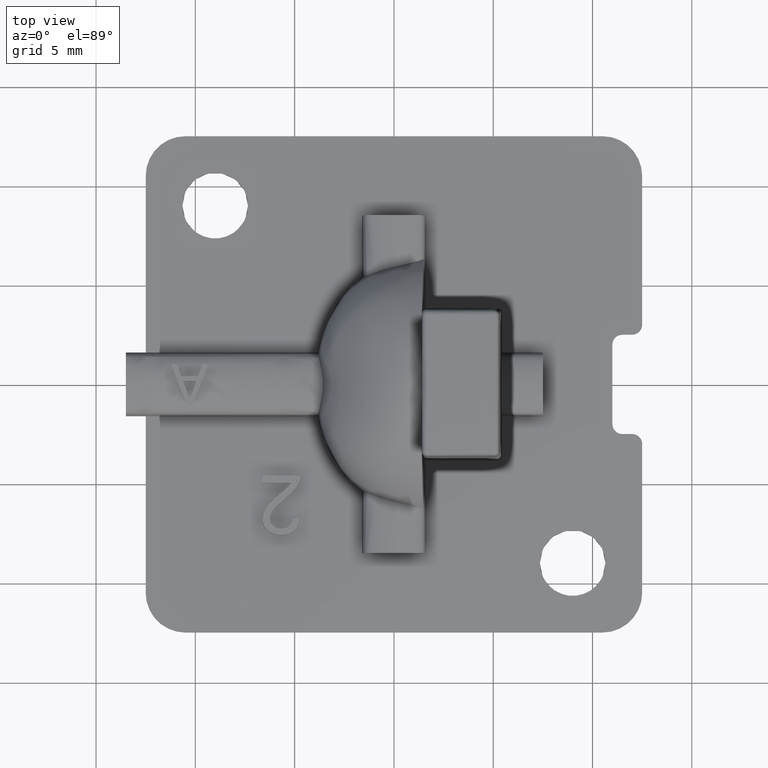
[diagram: clean part render]
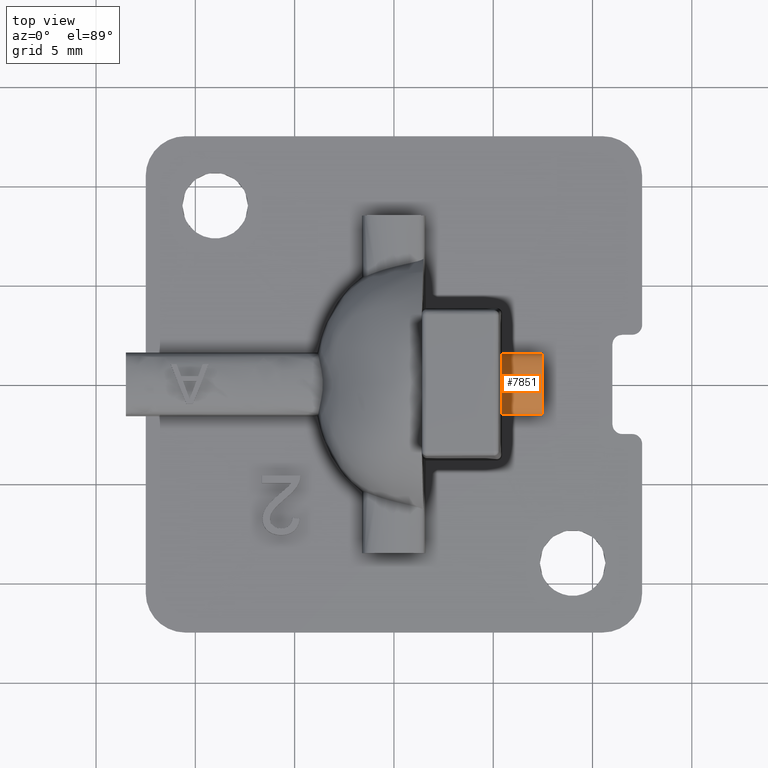
[diagram: same view with one face highlighted and labeled with its STEP entity id]
A machine part, top view. The second image highlights one B-rep face of the part: STEP entity #7851.
In plain terms, the highlighted face is a freeform B-spline surface patch.
Its self-contained STEP definition (entity closure, byte-faithful):
#280 = CARTESIAN_POINT ( 'NONE',  ( 7.500000000000000000, -1.524601638502158600, 1.499999999999999100 ) ) ;
#299 = CARTESIAN_POINT ( 'NONE',  ( 5.421472924649259000, -1.290839731930771600, 1.750118611399921900 ) ) ;
#511 = LINE ( 'NONE', #4523, #4865 ) ;
#579 = VERTEX_POINT ( 'NONE', #280 ) ;
#733 = DIRECTION ( 'NONE',  ( 1.000000000000000000, 0.0000000000000000000, 0.0000000000000000000 ) ) ;
#898 = CARTESIAN_POINT ( 'NONE',  ( 5.425824367762052300, 1.459869057367379600, 1.625509584275641500 ) ) ;
#923 = CARTESIAN_POINT ( 'NONE',  ( 5.425827301399199800, -1.459886954698381500, 1.625425575899381600 ) ) ;
#984 = CARTESIAN_POINT ( 'NONE',  ( 7.500000000000000000, -1.524601638502158600, 1.499999999999999100 ) ) ;
#1043 = B_SPLINE_CURVE_WITH_KNOTS ( 'NONE', 3,
 ( #6550, #4071, #4693, #984 ),
 .UNSPECIFIED., .F., .F.,
 ( 4, 4 ),
 ( 0.0000000000000000000, 1.000000000000000000 ),
 .UNSPECIFIED. ) ;
#1170 = ORIENTED_EDGE ( 'NONE', *, *, #7905, .F. ) ;
#1345 = CARTESIAN_POINT ( 'NONE',  ( 7.500000000000000000, 1.352055608433809600, 2.143950550859381900 ) ) ;
#1468 = ORIENTED_EDGE ( 'NONE', *, *, #1602, .T. ) ;
#1513 = CARTESIAN_POINT ( 'NONE',  ( 5.421459622129353800, 1.290190931300197400, 1.750499545729105000 ) ) ;
#1533 = CARTESIAN_POINT ( 'NONE',  ( 5.430207259023551300, -1.524601638502160100, 1.499999999999996200 ) ) ;
#1602 = EDGE_CURVE ( 'NONE', #4941, #579, #3356, .T. ) ;
#1962 = CARTESIAN_POINT ( 'NONE',  ( 7.500000000000000000, -1.352055608433680300, 2.143950550859878000 ) ) ;
#1980 = CARTESIAN_POINT ( 'NONE',  ( 5.430207259023551300, -1.524601638502160100, 1.499999999999996200 ) ) ;
#2069 = ORIENTED_EDGE ( 'NONE', *, *, #7575, .T. ) ;
#2128 = CARTESIAN_POINT ( 'NONE',  ( 5.417078233455024300, 0.9636963050714316700, 1.875966101538247400 ) ) ;
#2457 = CARTESIAN_POINT ( 'NONE',  ( 5.430207259023551300, 1.524601638502157900, 1.500000000000000400 ) ) ;
#2492 = VERTEX_POINT ( 'NONE', #2457 ) ;
#2582 = CARTESIAN_POINT ( 'NONE',  ( 7.500000000000000000, -1.524601638502160100, 1.499999999999996200 ) ) ;
#2593 = CARTESIAN_POINT ( 'NONE',  ( 7.500000000000000000, 1.524601638502158400, 1.499999999999999600 ) ) ;
#2752 = CARTESIAN_POINT ( 'NONE',  ( 5.413340625680140400, 0.2769837337382730600, 1.982997184452099700 ) ) ;
#2825 = B_SPLINE_SURFACE_WITH_KNOTS ( 'NONE', 3, 1, ( 
 ( #3809, #4432 ),
 ( #5060, #1345 ),
 ( #5694, #1962 ),
 ( #6315, #2582 ) ),
 .UNSPECIFIED., .F., .F., .F.,
 ( 4, 4 ),
 ( 2, 2 ),
 ( 0.0000000000000000000, 1.000000000000000000 ),
 ( 0.0000000000000000000, 1.000000000000000000 ),
 .UNSPECIFIED. ) ;
#2974 = VECTOR ( 'NONE', #4613, 1000.000000000000000 ) ;
#3006 = EDGE_CURVE ( 'NONE', #5139, #579, #1043, .T. ) ;
#3356 = LINE ( 'NONE', #4585, #2974 ) ;
#3368 = CARTESIAN_POINT ( 'NONE',  ( 5.414071858492350800, -0.5551423353057753900, 1.962057416432806800 ) ) ;
#3583 = EDGE_LOOP ( 'NONE', ( #1170, #2069, #1468, #6042 ) ) ;
#3809 = CARTESIAN_POINT ( 'NONE',  ( 5.400329142279635300, 1.524601638502158400, 1.499999999999999600 ) ) ;
#3975 = CARTESIAN_POINT ( 'NONE',  ( 5.430207259023551300, 1.524601638502157900, 1.500000000000000400 ) ) ;
#4007 = CARTESIAN_POINT ( 'NONE',  ( 5.418417592109406700, -1.101597300810959200, 1.837611887874683400 ) ) ;
#4071 = CARTESIAN_POINT ( 'NONE',  ( 7.500000000000000000, 1.352055608433809600, 2.143950550859381900 ) ) ;
#4432 = CARTESIAN_POINT ( 'NONE',  ( 7.500000000000000000, 1.524601638502158400, 1.499999999999999600 ) ) ;
#4523 = CARTESIAN_POINT ( 'NONE',  ( 4.750000000000000000, 1.524601638502158400, 1.499999999999999600 ) ) ;
#4585 = CARTESIAN_POINT ( 'NONE',  ( 4.750000000000000000, -1.524601638502158600, 1.499999999999999100 ) ) ;
#4613 = DIRECTION ( 'NONE',  ( 1.000000000000000000, 0.0000000000000000000, 0.0000000000000000000 ) ) ;
#4631 = CARTESIAN_POINT ( 'NONE',  ( 5.422687096603761200, -1.352421638233474400, 1.715349275781805200 ) ) ;
#4693 = CARTESIAN_POINT ( 'NONE',  ( 7.500000000000000000, -1.352055608433680300, 2.143950550859878000 ) ) ;
#4865 = VECTOR ( 'NONE', #733, 1000.000000000000000 ) ;
#4941 = VERTEX_POINT ( 'NONE', #1980 ) ;
#5058 = FACE_OUTER_BOUND ( 'NONE', #3583, .T. ) ;
#5060 = CARTESIAN_POINT ( 'NONE',  ( 5.400329142279635300, 1.352055608433809600, 2.143950550859381900 ) ) ;
#5139 = VERTEX_POINT ( 'NONE', #2593 ) ;
#5228 = CARTESIAN_POINT ( 'NONE',  ( 5.422671674477791200, 1.351810875807725400, 1.715790907687155800 ) ) ;
#5256 = CARTESIAN_POINT ( 'NONE',  ( 5.427815574420156600, -1.506250096787674000, 1.568488886075678900 ) ) ;
#5694 = CARTESIAN_POINT ( 'NONE',  ( 5.400329142279635300, -1.352055608433680300, 2.143950550859878000 ) ) ;
#5856 = CARTESIAN_POINT ( 'NONE',  ( 5.418389714783290700, 1.099515649572017800, 1.838410190046121600 ) ) ;
#6042 = ORIENTED_EDGE ( 'NONE', *, *, #3006, .F. ) ;
#6315 = CARTESIAN_POINT ( 'NONE',  ( 5.400329142279635300, -1.524601638502160100, 1.499999999999996200 ) ) ;
#6486 = CARTESIAN_POINT ( 'NONE',  ( 5.414087623966037400, 0.5569271335112455600, 1.961605952335246700 ) ) ;
#6497 = B_SPLINE_CURVE_WITH_KNOTS ( 'NONE', 3,
 ( #3975, #7702, #898, #5228, #1513, #5856, #2128, #6486, #2752, #7101, #3368, #7728, #4007, #299, #4631, #923, #5256, #1533 ),
 .UNSPECIFIED., .F., .F.,
 ( 4, 2, 2, 2, 2, 2, 2, 2, 4 ),
 ( 9.697399036122160600E-019, 0.0002105274662663399800, 0.0004210549325326789800, 0.0008421098650653564400, 0.001684219730130711400, 0.002526329595196066800, 0.002947384527728744300, 0.003157911993995083100, 0.003368439460261421800 ),
 .UNSPECIFIED. ) ;
#6550 = CARTESIAN_POINT ( 'NONE',  ( 7.500000000000000000, 1.524601638502158400, 1.499999999999999600 ) ) ;
#7101 = CARTESIAN_POINT ( 'NONE',  ( 5.413343021811731300, -0.2781749610918687300, 1.982928568220980700 ) ) ;
#7575 = EDGE_CURVE ( 'NONE', #2492, #4941, #6497, .T. ) ;
#7702 = CARTESIAN_POINT ( 'NONE',  ( 5.427801376625844800, 1.506141156246670700, 1.568895457709705000 ) ) ;
#7728 = CARTESIAN_POINT ( 'NONE',  ( 5.417094223301353900, -0.9656906718917186400, 1.875508212248794700 ) ) ;
#7851 = ADVANCED_FACE ( 'NONE', ( #5058 ), #2825, .T. ) ;
#7905 = EDGE_CURVE ( 'NONE', #2492, #5139, #511, .T. ) ;